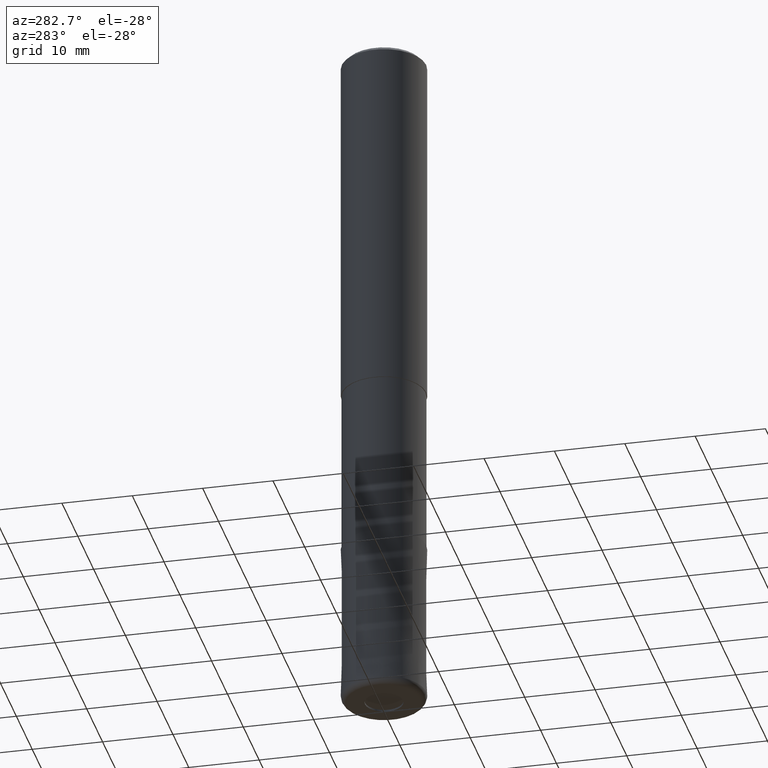
[diagram: clean part render]
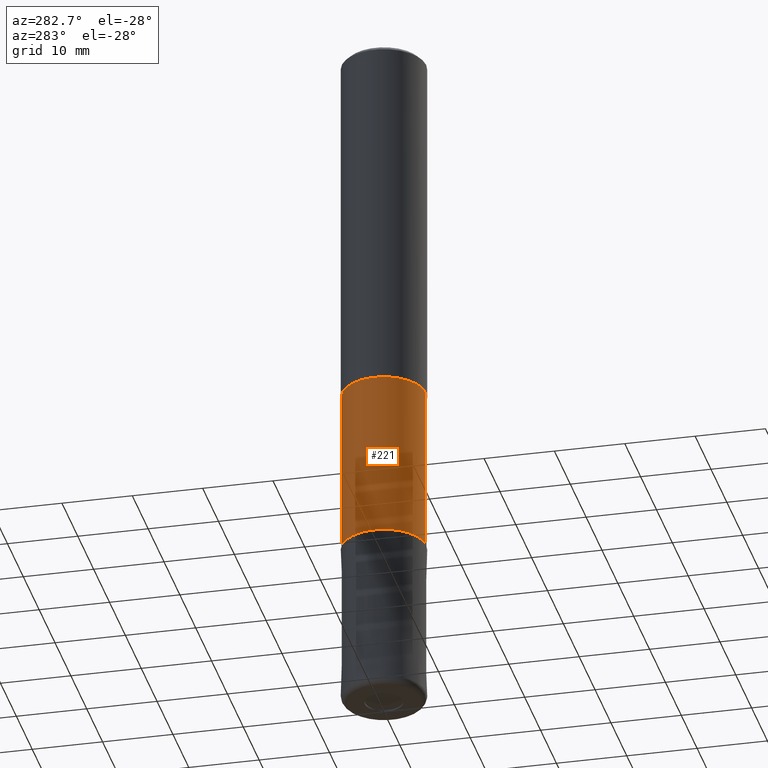
[diagram: same view with one face highlighted and labeled with its STEP entity id]
A machine part, auxiliary view. The second image highlights one B-rep face of the part: STEP entity #221.
In plain terms, the highlighted cylindrical surface (partial cylindrical patch) has radius 5.8999 mm, axis along (-0, -0, 1).
Its self-contained STEP definition (entity closure, byte-faithful):
#131=VERTEX_POINT('',#319);
#171=EDGE_CURVE('',#131,#187,#364,.T.);
#187=VERTEX_POINT('',#384);
#193=VERTEX_POINT('',#390);
#221=ADVANCED_FACE('',(#422),#423,.T.);
#239=VERTEX_POINT('',#446);
#241=EDGE_CURVE('',#131,#193,#448,.T.);
#249=EDGE_CURVE('',#239,#187,#456,.T.);
#253=EDGE_CURVE('',#193,#239,#460,.T.);
#319=CARTESIAN_POINT('',(7.22511625723433E-016,-5.89995,-76.0));
#364=CIRCLE('',#584,5.89995);
#384=CARTESIAN_POINT('',(0.0,5.89995,-76.0));
#390=CARTESIAN_POINT('',(7.22511625723433E-016,-5.89995,-52.0));
#422=FACE_OUTER_BOUND('',#652,.T.);
#423=CYLINDRICAL_SURFACE('',#653,5.89995);
#446=CARTESIAN_POINT('',(0.0,5.89995,-52.0));
#448=LINE('',#685,#686);
#456=LINE('',#697,#698);
#460=CIRCLE('',#703,5.89995);
#584=AXIS2_PLACEMENT_3D('',#813,#814,#815);
#652=EDGE_LOOP('',(#889,#890,#891,#892));
#653=AXIS2_PLACEMENT_3D('',#893,#894,#895);
#685=CARTESIAN_POINT('',(7.22511625723433E-016,-5.89995,-64.0));
#686=VECTOR('',#936,1.0);
#697=CARTESIAN_POINT('',(-7.22511625723433E-016,5.89995,-64.0));
#698=VECTOR('',#943,1.0);
#703=AXIS2_PLACEMENT_3D('',#944,#945,#946);
#813=CARTESIAN_POINT('',(0.0,0.0,-76.0));
#814=DIRECTION('',(0.0,0.0,-1.0));
#815=DIRECTION('',(0.0,1.0,0.0));
#889=ORIENTED_EDGE('',*,*,#249,.T.);
#890=ORIENTED_EDGE('',*,*,#171,.F.);
#891=ORIENTED_EDGE('',*,*,#241,.T.);
#892=ORIENTED_EDGE('',*,*,#253,.T.);
#893=CARTESIAN_POINT('',(0.0,0.0,-64.0));
#894=DIRECTION('',(-0.0,-0.0,1.0));
#895=DIRECTION('',(0.0,1.0,0.0));
#936=DIRECTION('',(-0.0,-0.0,1.0));
#943=DIRECTION('',(0.0,0.0,-1.0));
#944=CARTESIAN_POINT('',(0.0,0.0,-52.0));
#945=DIRECTION('',(0.0,0.0,-1.0));
#946=DIRECTION('',(0.0,1.0,0.0));